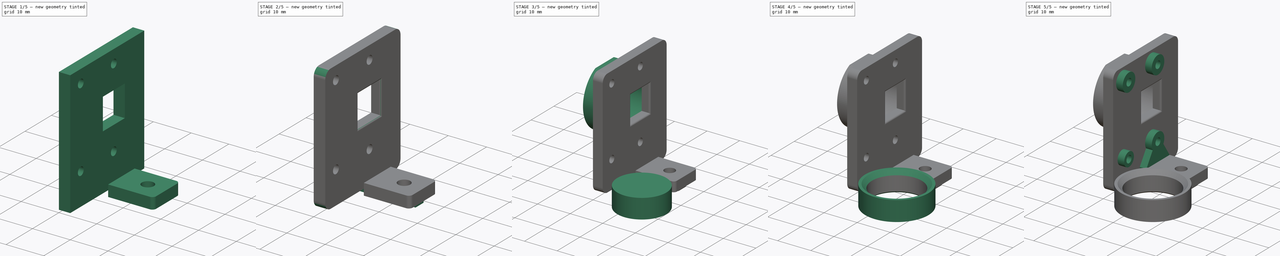
[diagram: build sequence overview — one tinted view per stage of 5, left to right]
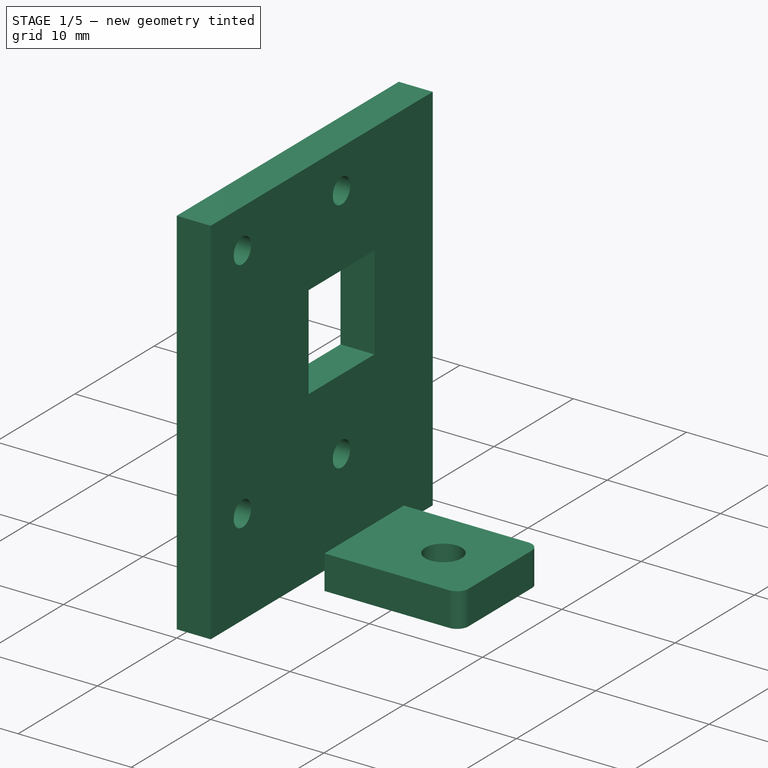
[diagram: stage 1 of 5 — iso view after this stage's code; geometry added in this stage tinted green]
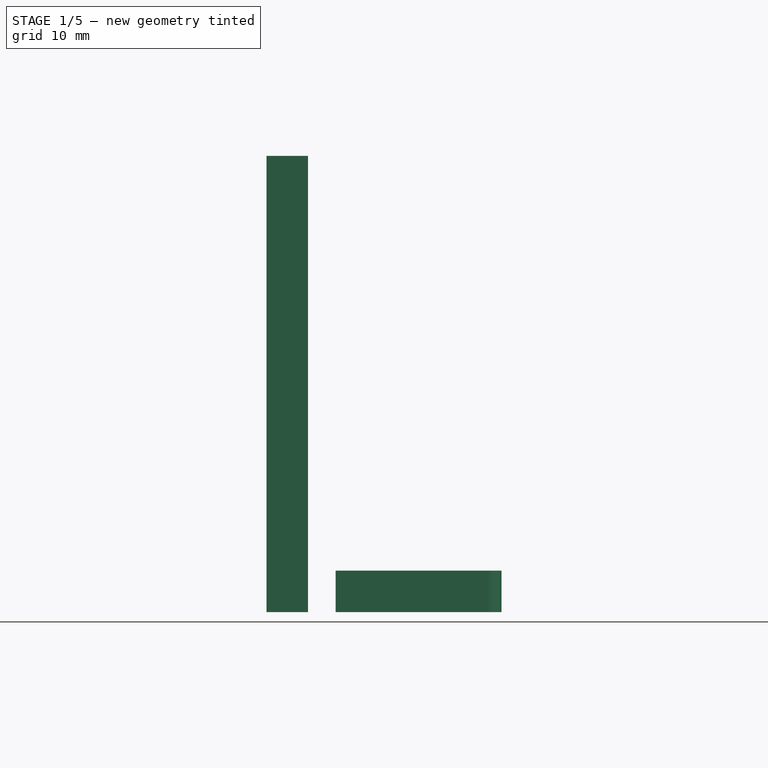
[diagram: stage 1 of 5 — front view after this stage's code; geometry added in this stage tinted green]
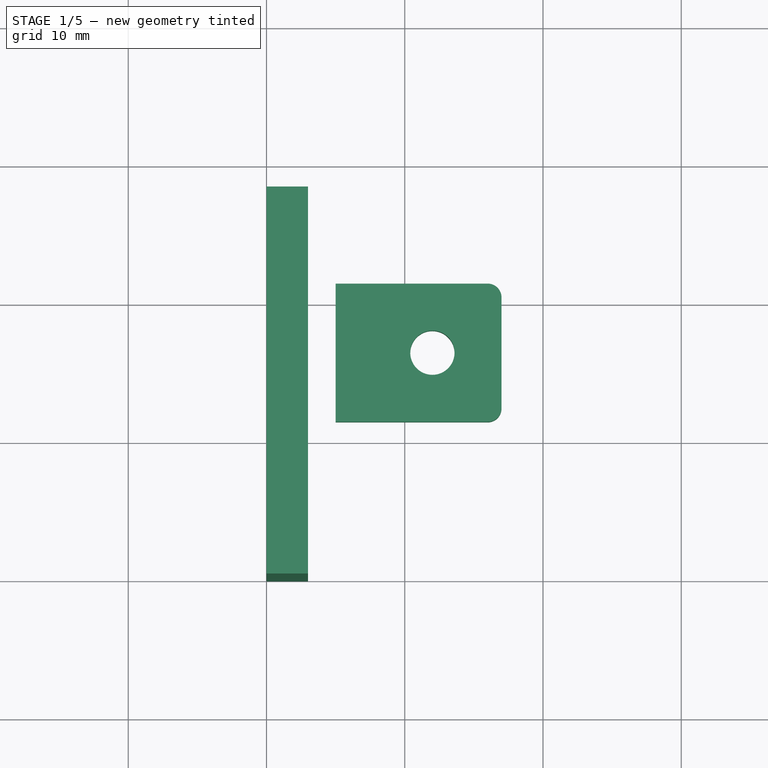
[diagram: stage 1 of 5 — top view after this stage's code; geometry added in this stage tinted green]
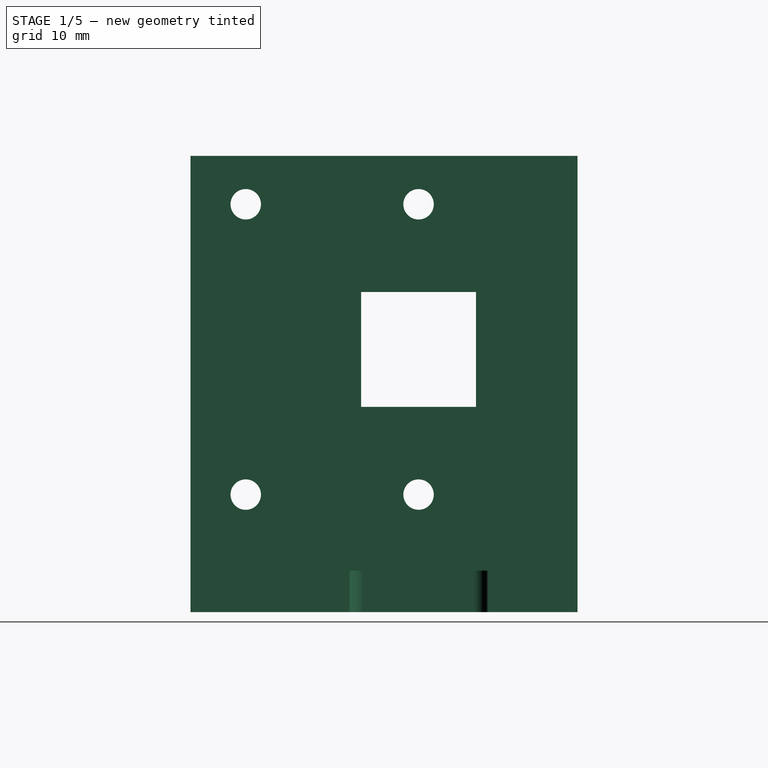
[diagram: stage 1 of 5 — right view after this stage's code; geometry added in this stage tinted green]
FCSTD DOCUMENT  (FreeCAD 0.14R3679 (Git) (Packman))
Label: camera-mount-3
License: CC-BY 3.0
LicenseURL: http://creativecommons.org/licenses/by/3.0/
objects: Sketcher::SketchObject×7, PartDesign::Pad×5, PartDesign::Chamfer×4, PartDesign::Fillet×4, Part::Cylinder×3, PartDesign::Pocket×2, Part::Cut×1, Part::MultiFuse×1, Part::Feature×1
note: 35 computed .brp shape members not serialized (recipe doc carries the construction recipe); baked Part::Feature solids carry a one-line shape summary decoded from their .brp

FEATURE [Sketcher::SketchObject] Sketch
  Placement = pos=(0,0,0) rot=(0.57735,0.57735,0.57735;2.0944rad)
  sketch-geometry (19):
    g0: LineSegment StartX=0 StartY=0 StartZ=0 EndX=28 EndY=0 EndZ=0
    g1: LineSegment StartX=28 StartY=0 StartZ=0 EndX=28 EndY=33 EndZ=0
    g2: LineSegment StartX=28 StartY=33 StartZ=0 EndX=0 EndY=33 EndZ=0
    g3: LineSegment StartX=0 StartY=33 StartZ=0 EndX=0 EndY=0 EndZ=0
    g4: Circle CenterX=16.5 CenterY=29.5 CenterZ=0 NormalX=0 NormalY=0 NormalZ=1 Radius=1.1
    g5: Circle CenterX=4 CenterY=29.5 CenterZ=0 NormalX=0 NormalY=0 NormalZ=1 Radius=1.1
    g6: Circle CenterX=4 CenterY=8.5 CenterZ=0 NormalX=0 NormalY=0 NormalZ=1 Radius=1.1
    g7: Circle CenterX=16.5 CenterY=8.5 CenterZ=0 NormalX=0 NormalY=0 NormalZ=1 Radius=1.1
    g8: LineSegment [constr] StartX=4 StartY=8.5 StartZ=0 EndX=16.5 EndY=8.5 EndZ=0
    g9: LineSegment [constr] StartX=16.5 StartY=8.5 StartZ=0 EndX=16.5 EndY=29.5 EndZ=0
    g10: LineSegment [constr] StartX=16.5 StartY=29.5 StartZ=0 EndX=4 EndY=29.5 EndZ=0
    g11: LineSegment [constr] StartX=4 StartY=29.5 StartZ=0 EndX=4 EndY=8.5 EndZ=0
    g12: LineSegment StartX=12.35 StartY=23.15 StartZ=0 EndX=20.65 EndY=23.15 EndZ=0
    g13: LineSegment StartX=20.65 StartY=23.15 StartZ=0 EndX=20.65 EndY=14.85 EndZ=0
    g14: LineSegment StartX=20.65 StartY=14.85 StartZ=0 EndX=12.35 EndY=14.85 EndZ=0
    g15: LineSegment StartX=12.35 StartY=14.85 StartZ=0 EndX=12.35 EndY=23.15 EndZ=0
    g16: LineSegment [constr] StartX=12.35 StartY=23.15 StartZ=0 EndX=20.65 EndY=14.85 EndZ=0
    g17: LineSegment [constr] StartX=20.65 StartY=23.15 StartZ=0 EndX=12.35 EndY=14.85 EndZ=0
    g18: GeomPoint [constr] X=16.5 Y=19 Z=0
  constraints (49):
    c: Coincident(g0,g1)
    c: Coincident(g1,g2)
    c: Coincident(g2,g3)
    c: Coincident(g3,g0)
    c: Horizontal(g0)
    c: Horizontal(g2)
    c: Vertical(g1)
    c: Vertical(g3)
    c: Coincident(g0,g-1)
    c: DistanceY(g3) = -33
    c: DistanceX(g0) = 28
    c: Equal(g5,g4)
    c: Equal(g4,g6)
    c: Equal(g6,g7)
    c: Radius(g6) = 1.1
    c: Coincident(g8,g9)
    c: Coincident(g9,g10)
    c: Coincident(g10,g11)
    c: Coincident(g11,g8)
    c: Horizontal(g8)
    c: Horizontal(g10)
    c: Vertical(g9)
    c: Vertical(g11)
    c: DistanceY(g11) = -21
    c: DistanceX(g8) = 12.5
    c: Coincident(g6,g8)
    c: Coincident(g7,g8)
    c: Coincident(g5,g10)
    c: Coincident(g9,g4)
    c: Coincident(g12,g13)
    c: Coincident(g13,g14)
    c: Coincident(g14,g15)
    c: Coincident(g15,g12)
    c: Horizontal(g12)
    c: Horizontal(g14)
    c: Vertical(g13)
    c: Vertical(g15)
    c: DistanceY(g13) = -8.3
    c: DistanceX(g12) = 8.3
    c: Symmetric(g13,g14,g9)
    c: DistanceY(g13,g7) = -6.35
    c: DistanceX(g-1,g6) = 4
    c: Coincident(g16,g12)
    c: Coincident(g16,g13)
    c: Coincident(g17,g12)
    c: Coincident(g17,g14)
    c: PointOnObject(g18,g17)
    c: PointOnObject(g18,g16)
    c: DistanceY(g-1,g18) = 19
FEATURE [Sketcher::SketchObject] Sketch001
  Placement = pos=(3,0,0) rot=(0.57735,0.57735,0.57735;2.0944rad)
  sketch-geometry (19):
    g0: Circle CenterX=16.5 CenterY=29.5 CenterZ=0 NormalX=0 NormalY=0 NormalZ=1 Radius=1.1
    g1: Circle CenterX=4 CenterY=29.5 CenterZ=0 NormalX=0 NormalY=0 NormalZ=1 Radius=1.1
    g2: Circle CenterX=4 CenterY=8.5 CenterZ=0 NormalX=0 NormalY=0 NormalZ=1 Radius=1.1
    g3: Circle CenterX=16.5 CenterY=8.5 CenterZ=0 NormalX=0 NormalY=0 NormalZ=1 Radius=1.1
    g4: LineSegment [constr] StartX=4 StartY=8.5 StartZ=0 EndX=16.5 EndY=8.5 EndZ=0
    g5: LineSegment [constr] StartX=16.5 StartY=8.5 StartZ=0 EndX=16.5 EndY=29.5 EndZ=0
    g6: LineSegment [constr] StartX=16.5 StartY=29.5 StartZ=0 EndX=4 EndY=29.5 EndZ=0
    g7: LineSegment [constr] StartX=4 StartY=29.5 StartZ=0 EndX=4 EndY=8.5 EndZ=0
    g8: Circle CenterX=4 CenterY=8.5 CenterZ=0 NormalX=0 NormalY=0 NormalZ=1 Radius=2.1
    g9: ArcOfCircle CenterX=16.5 CenterY=8.5 CenterZ=0 NormalX=0 NormalY=0 NormalZ=1 Radius=2.71418 StartAngle=1.5708 EndAngle=3.70582
    g10: Circle CenterX=4 CenterY=29.5 CenterZ=0 NormalX=0 NormalY=0 NormalZ=1 Radius=2.71418
    g11: Circle CenterX=16.5 CenterY=29.5 CenterZ=0 NormalX=0 NormalY=0 NormalZ=1 Radius=2.71418
    g12: LineSegment StartX=21.5 StartY=3 StartZ=0 EndX=21.5 EndY=0 EndZ=0
    g13: LineSegment StartX=21.5 StartY=0 StartZ=0 EndX=11.5 EndY=0 EndZ=0
    g14: LineSegment StartX=11.5 StartY=0 StartZ=0 EndX=11.5 EndY=3 EndZ=0
    g15: LineSegment StartX=14.2065 StartY=7.04855 StartZ=0 EndX=11.5 EndY=3 EndZ=0
    g16: LineSegment StartX=18.7935 StartY=7.04855 StartZ=0 EndX=21.5 EndY=3 EndZ=0
    g17: ArcOfCircle CenterX=16.5 CenterY=8.5 CenterZ=0 NormalX=0 NormalY=0 NormalZ=1 Radius=2.71418 StartAngle=5.71895 EndAngle=7.85398
    g18: LineSegment [constr] StartX=4 StartY=19 StartZ=0 EndX=16.5 EndY=19 EndZ=0
  constraints (53):
    c: Equal(g1,g0)
    c: Equal(g0,g2)
    c: Equal(g2,g3)
    c: Coincident(g4,g5)
    c: Coincident(g5,g6)
    c: Coincident(g6,g7)
    c: Coincident(g7,g4)
    c: Coincident(g2,g4)
    c: Coincident(g3,g4)
    c: Coincident(g1,g6)
    c: Coincident(g5,g0)
    c: DistanceX(g-1,g2) = 4
    c: Coincident(g8,g2)
    c: Coincident(g10,g1)
    c: Coincident(g11,g0)
    c: Coincident(g9,g3)
    c: Equal(g9,g11)
    c: Equal(g11,g10)
    c: Coincident(g12,g13)
    c: Coincident(g13,g14)
    c: DistanceX(g13,g3) = 5
    c: PointOnObject(g13,g-1)
    c: Tangent(g15,g3)
    c: Tangent(g16,g3)
    c: PointOnObject(g16,g9)
    c: Equal(g16,g15)
    c: PointOnObject(g9,g5)
    c: PointOnObject(g9,g15)
    c: Coincident(g17,g3)
    c: Coincident(g17,g16)
    c: Coincident(g17,g9)
    c: DistanceY(g12) = -3
    c: DistanceX(g13) = -10
    c: Vertical(g12)
    c: Vertical(g14)
    c: Horizontal(g13)
    c: Radius(g2) = 1.1
    c: Equal(g4,g6)
    c: Equal(g7,g5)
    c: Vertical(g7)
    c: Horizontal(g4)
    c: DistanceX(g4) = 12.5
    c: DistanceY(g7) = -21
    c: Coincident(g15,g9)
    c: Coincident(g15,g14)
    c: Coincident(g16,g12)
    c: Radius(g8) = 2.1
    c: Radius(g11) = 2.71418
    c: PointOnObject(g18,g7)
    c: PointOnObject(g18,g5)
    c: Horizontal(g18)
    c: Symmetric(g3,g0,g18)
    c: DistanceY(g-1,g18) = 19
FEATURE [Sketcher::SketchObject] Sketch002
  Placement = pos=(5,0,0) rot=(0.57735,0.57735,0.57735;2.0944rad)
  sketch-geometry (4):
    g0: LineSegment StartX=11.5 StartY=3 StartZ=0 EndX=21.5 EndY=3 EndZ=0
    g1: LineSegment StartX=21.5 StartY=3 StartZ=0 EndX=21.5 EndY=0 EndZ=0
    g2: LineSegment StartX=21.5 StartY=0 StartZ=0 EndX=11.5 EndY=0 EndZ=0
    g3: LineSegment StartX=11.5 StartY=0 StartZ=0 EndX=11.5 EndY=3 EndZ=0
  constraints (12):
    c: Coincident(g0,g1)
    c: Coincident(g1,g2)
    c: Coincident(g2,g3)
    c: Coincident(g3,g0)
    c: PointOnObject(g1,g-1)
    c: DistanceX(g-1,g2) = 11.5
    c: Vertical(g3)
    c: Vertical(g1)
    c: Horizontal(g0)
    c: Horizontal(g2)
    c: DistanceX(g2) = -10
    c: DistanceY(g1) = -3
FEATURE [Sketcher::SketchObject] Sketch004
  Placement = pos=(0,0,0) rot=(0.707107,0.707107,0;3.14159rad)
  sketch-geometry (8):
    g0: LineSegment StartX=15 StartY=9 StartZ=0 EndX=18 EndY=9 EndZ=0
    g1: LineSegment StartX=18 StartY=9 StartZ=0 EndX=18 EndY=0 EndZ=0
    g2: LineSegment StartX=18 StartY=0 StartZ=0 EndX=15 EndY=0 EndZ=0
    g3: LineSegment StartX=15 StartY=0 StartZ=0 EndX=15 EndY=9 EndZ=0
    g4: LineSegment StartX=15 StartY=16 StartZ=0 EndX=18 EndY=16 EndZ=0
    g5: LineSegment StartX=18 StartY=16 StartZ=0 EndX=18 EndY=14 EndZ=0
    g6: LineSegment StartX=18 StartY=14 StartZ=0 EndX=15 EndY=14 EndZ=0
    g7: LineSegment StartX=15 StartY=14 StartZ=0 EndX=15 EndY=16 EndZ=0
  constraints (24):
    c: Coincident(g0,g1)
    c: Coincident(g1,g2)
    c: Coincident(g2,g3)
    c: Coincident(g3,g0)
    c: Coincident(g4,g5)
    c: Coincident(g5,g6)
    c: Coincident(g6,g7)
    c: Coincident(g7,g4)
    c: Equal(g4,g0)
    c: DistanceX(g-1,g2) = 15
    c: DistanceX(g-1,g6) = 15
    c: DistanceY(g5,g0) = -5
    c: PointOnObject(g2,g-1)
    c: Vertical(g3)
    c: Vertical(g1)
    c: Vertical(g5)
    c: Vertical(g7)
    c: Horizontal(g6)
    c: Horizontal(g4)
    c: Horizontal(g0)
    c: Horizontal(g2)
    c: DistanceY(g1) = -9
    c: DistanceY(g5) = -2
    c: DistanceX(g4) = 3
FEATURE [Sketcher::SketchObject] Sketch005
  Placement = pos=(0,0,0) rot=(0.57735,0.57735,-0.57735;4.18879rad)
  sketch-geometry (5):
    g0: Circle CenterX=16.5 CenterY=-19 CenterZ=0 NormalX=0 NormalY=0 NormalZ=1 Radius=7.55
    g1: ArcOfCircle CenterX=16.5 CenterY=-19 CenterZ=0 NormalX=0 NormalY=0 NormalZ=1 Radius=9.44986 StartAngle=2.01074 EndAngle=4.27244
    g2: LineSegment StartX=12.4754 StartY=-10.45 StartZ=0 EndX=20.5246 EndY=-10.45 EndZ=0
    g3: LineSegment StartX=12.4754 StartY=-27.55 StartZ=0 EndX=20.5246 EndY=-27.55 EndZ=0
    g4: ArcOfCircle CenterX=16.5 CenterY=-19 CenterZ=0 NormalX=0 NormalY=0 NormalZ=1 Radius=9.44986 StartAngle=5.15233 EndAngle=7.41404
  constraints (15):
    c: Coincident(g1,g0)
    c: Coincident(g1,g2)
    c: Coincident(g4,g2)
    c: Equal(g3,g2)
    c: Equal(g1,g4)
    c: Coincident(g1,g3)
    c: Coincident(g4,g3)
    c: Coincident(g1,g4)
    c: DistanceY(g3,g2) = 17.1
    c: Radius(g0) = 7.55
    c: DistanceX(g-1,g0) = 16.5
    c: DistanceX(g-1,g1) = 12.4754
    c: Horizontal(g2)
    c: DistanceY(g-1,g0) = -19
    c: Horizontal(g3)
FEATURE [PartDesign::Pad] Pad
  Length = 3
  Length2 = 100
  Placement = pos=(0,0,0) rot=(0.57735,0.57735,0.57735;2.0944rad)
  Sketch = -> Sketch
  Type = 0
FEATURE [PartDesign::Pad] Pad004
  Length = 12
  Length2 = 100
  Placement = pos=(5,0,0) rot=(0.57735,0.57735,0.57735;2.0944rad)
  Sketch = -> Sketch002
  Type = 0
FEATURE [Sketcher::SketchObject] Sketch006
  ExternalGeometry = -> [Pad004]
  Placement = pos=(5,0,3) rot=(0,0,-1;1.5708rad)
  Support = -> Pad004 [Face1]
  sketch-geometry (1):
    g0: Circle CenterX=-16.5 CenterY=7 CenterZ=0 NormalX=0 NormalY=0 NormalZ=1 Radius=1.6
  constraints (3):
    c: Radius(g0) = 1.6
    c: DistanceY(g0,g-4) = 5
    c: DistanceX(g0,g-4) = -5
FEATURE [PartDesign::Pocket] Pocket
  Length = 5
  Placement = pos=(5,0,0) rot=(0.57735,0.57735,0.57735;2.0944rad)
  Sketch = -> Sketch006
  Type = 0
FEATURE [PartDesign::Fillet] Fillet003
  Base = -> Pocket [Edge11,Edge8]
  Placement = pos=(5,0,0) rot=(0.57735,0.57735,0.57735;2.0944rad)
  Radius = 1
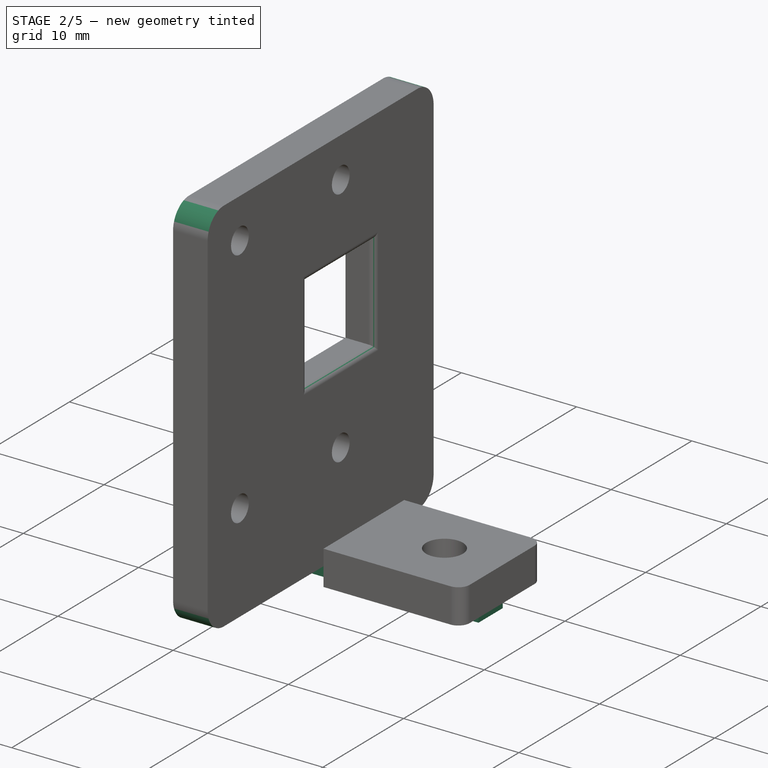
[diagram: stage 2 of 5 — iso view after this stage's code; geometry added in this stage tinted green]
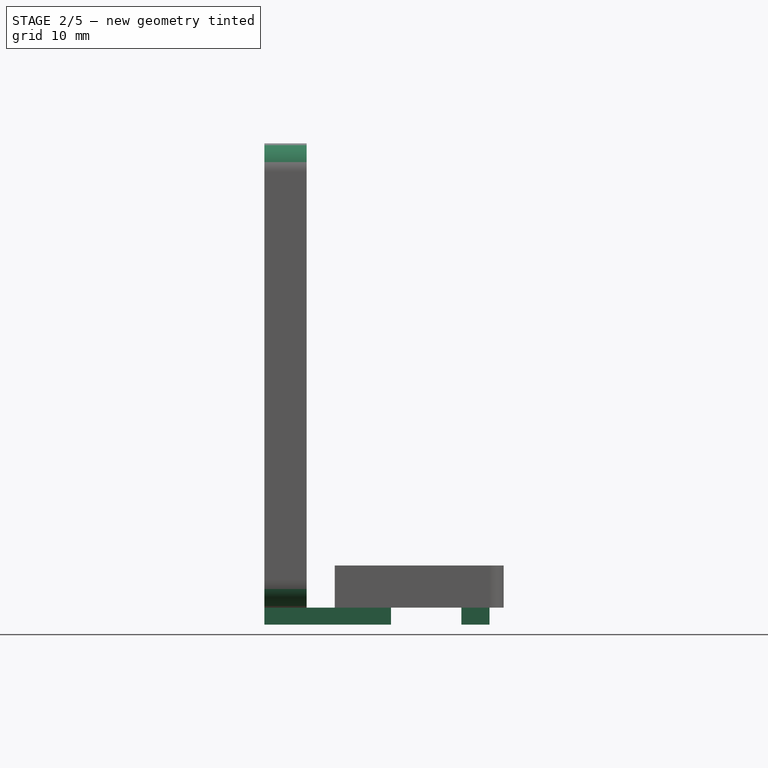
[diagram: stage 2 of 5 — front view after this stage's code; geometry added in this stage tinted green]
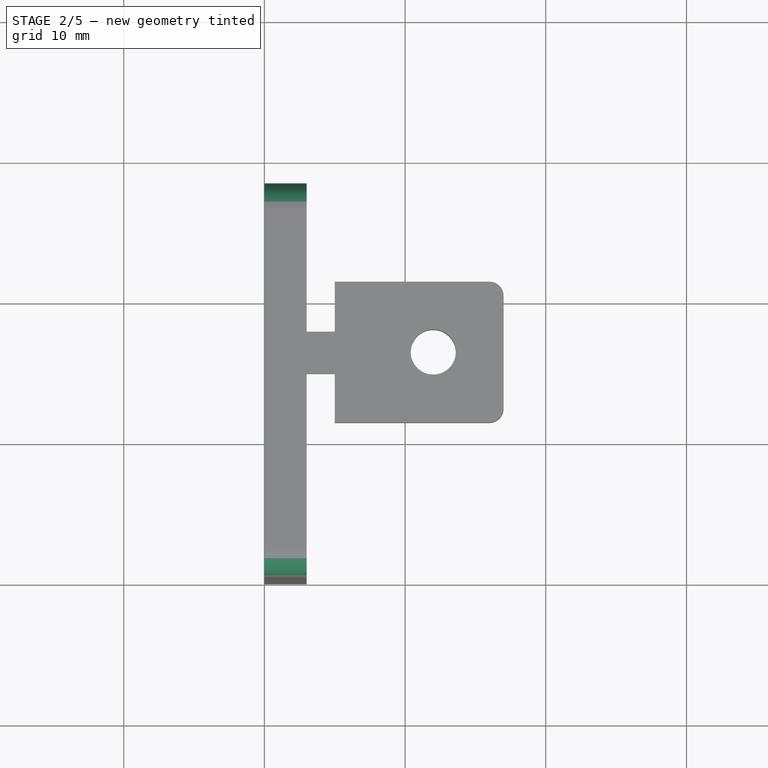
[diagram: stage 2 of 5 — top view after this stage's code; geometry added in this stage tinted green]
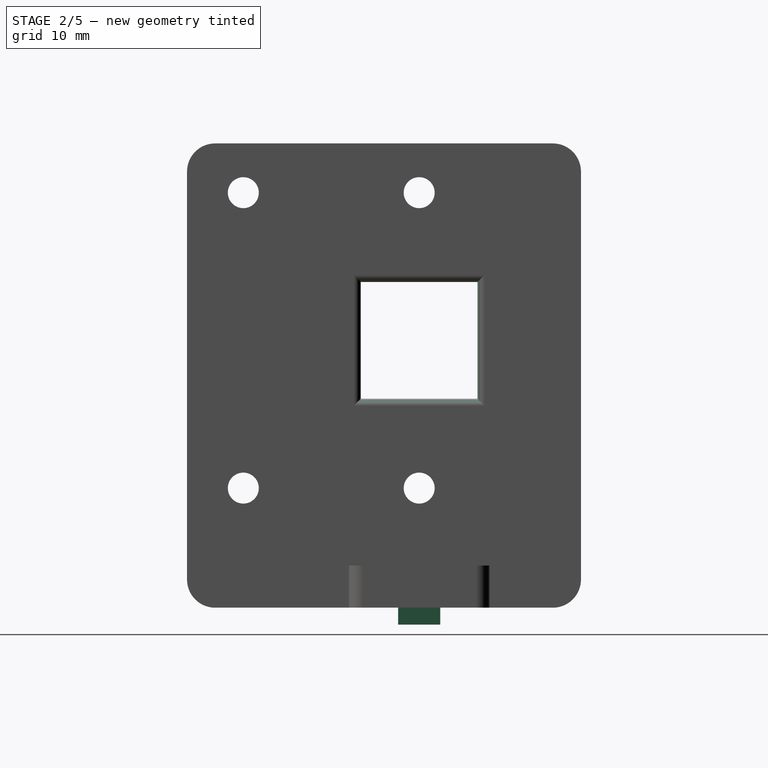
[diagram: stage 2 of 5 — right view after this stage's code; geometry added in this stage tinted green]
FEATURE [PartDesign::Pad] Pad002
  Length = 1.2
  Length2 = 100
  Placement = pos=(0,0,0) rot=(0.707107,0.707107,0;3.14159rad)
  Sketch = -> Sketch004
  Type = 0
FEATURE [Sketcher::SketchObject] Sketch007
  Placement = pos=(0,0,0) rot=(0.57735,0.57735,-0.57735;4.18879rad)
  Support = -> Pad [Face13]
  sketch-geometry (1):
    g0: Circle CenterX=16.5 CenterY=-19 CenterZ=0 NormalX=0 NormalY=0 NormalZ=1 Radius=7.5
  constraints (3):
    c: Radius(g0) = 7.5
    c: DistanceY(g-1,g0) = -19
    c: DistanceX(g-1,g0) = 16.5
FEATURE [PartDesign::Pocket] Pocket001
  Length = 0.5
  Placement = pos=(0,0,0) rot=(0.57735,0.57735,0.57735;2.0944rad)
  Sketch = -> Sketch007
  Type = 0
FEATURE [PartDesign::Fillet] Fillet
  Base = -> Pocket001 [Edge5,Edge8,Edge2,Edge1]
  Placement = pos=(0,0,0) rot=(0.57735,0.57735,0.57735;2.0944rad)
  Radius = 2
FEATURE [PartDesign::Fillet] Fillet002
  Base = -> Fillet [Edge27,Edge26,Edge29,Edge28]
  Placement = pos=(0,0,0) rot=(0.57735,0.57735,0.57735;2.0944rad)
  Radius = 0.5
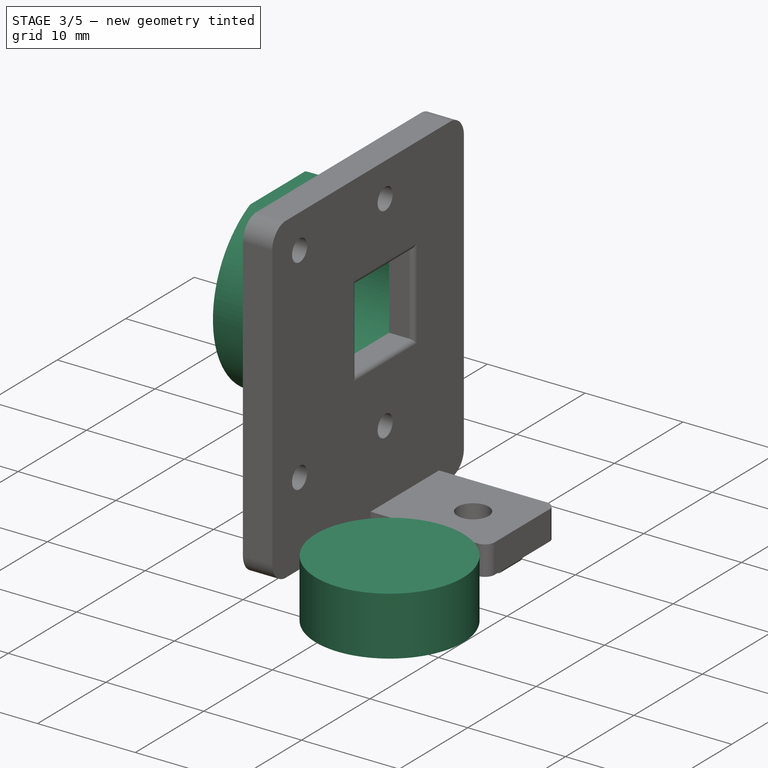
[diagram: stage 3 of 5 — iso view after this stage's code; geometry added in this stage tinted green]
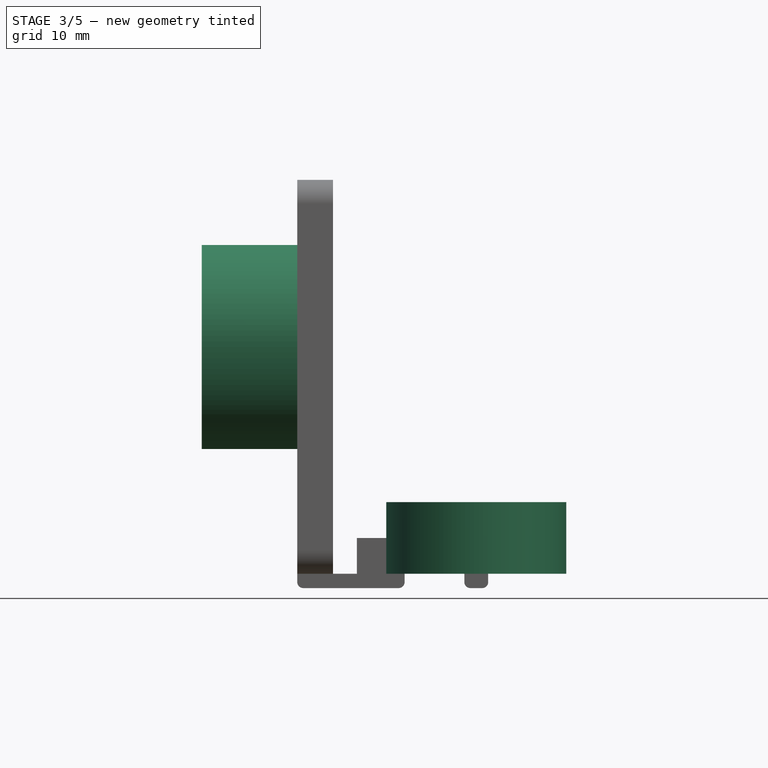
[diagram: stage 3 of 5 — front view after this stage's code; geometry added in this stage tinted green]
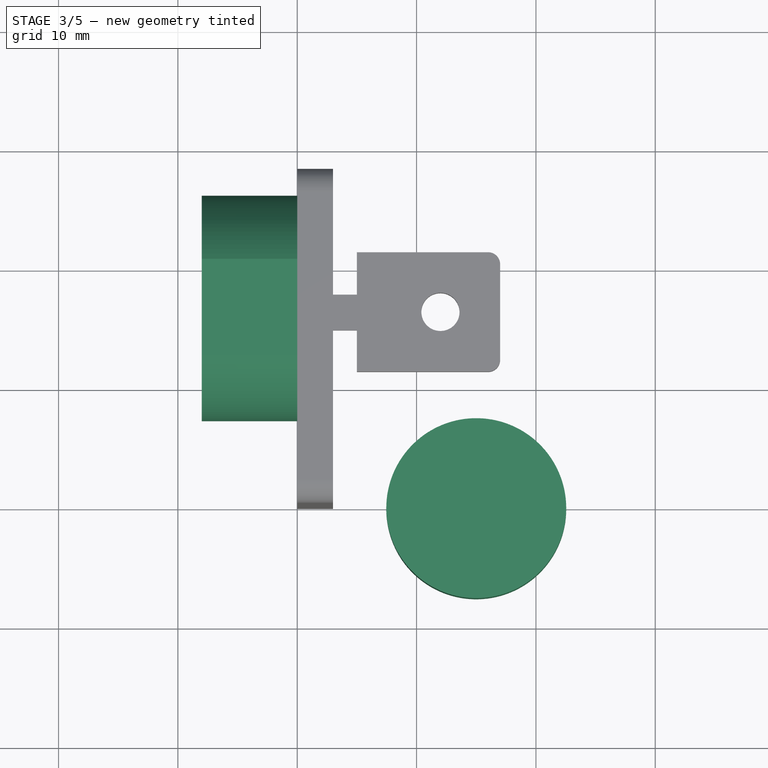
[diagram: stage 3 of 5 — top view after this stage's code; geometry added in this stage tinted green]
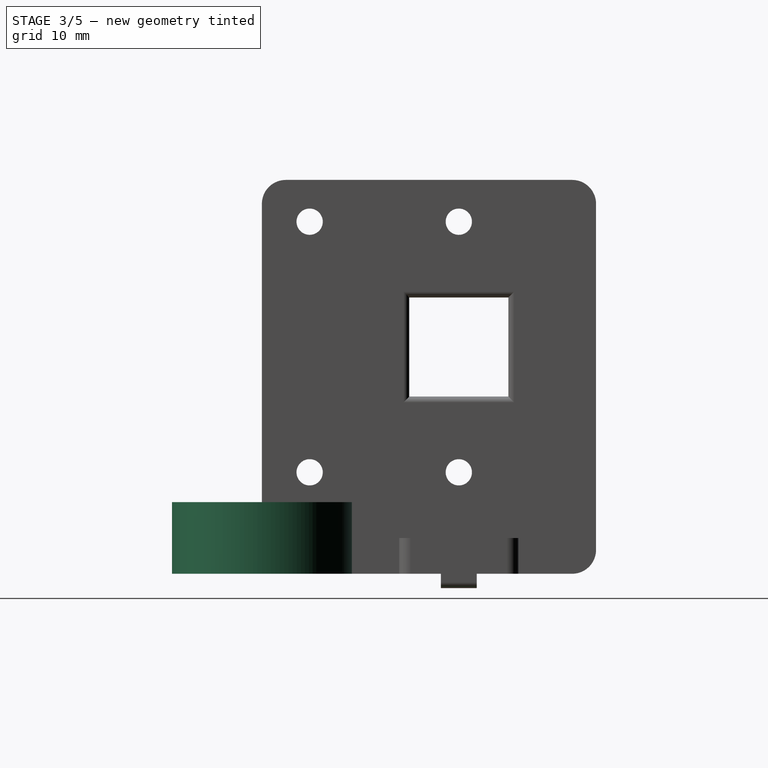
[diagram: stage 3 of 5 — right view after this stage's code; geometry added in this stage tinted green]
FEATURE [PartDesign::Pad] Pad001
  Length = 8
  Length2 = 100
  Placement = pos=(0,0,0) rot=(0.57735,0.57735,-0.57735;4.18879rad)
  Sketch = -> Sketch005
  Type = 0
FEATURE [Part::Cylinder] Cylinder001
  Angle = 360
  Height = 6
  Placement = pos=(15,0,0) rot=(0,0,1;0rad)
  Radius = 7.54
FEATURE [PartDesign::Chamfer] Chamfer003
  Base = -> Pad001 [Edge15]
  Placement = pos=(0,0,0) rot=(0.57735,0.57735,-0.57735;4.18879rad)
  Size = 0.5
FEATURE [PartDesign::Fillet] Fillet001
  Base = -> Pad002 [Edge10,Edge4,Edge22,Edge16]
  Placement = pos=(0,0,0) rot=(0.707107,0.707107,0;3.14159rad)
  Radius = 0.5
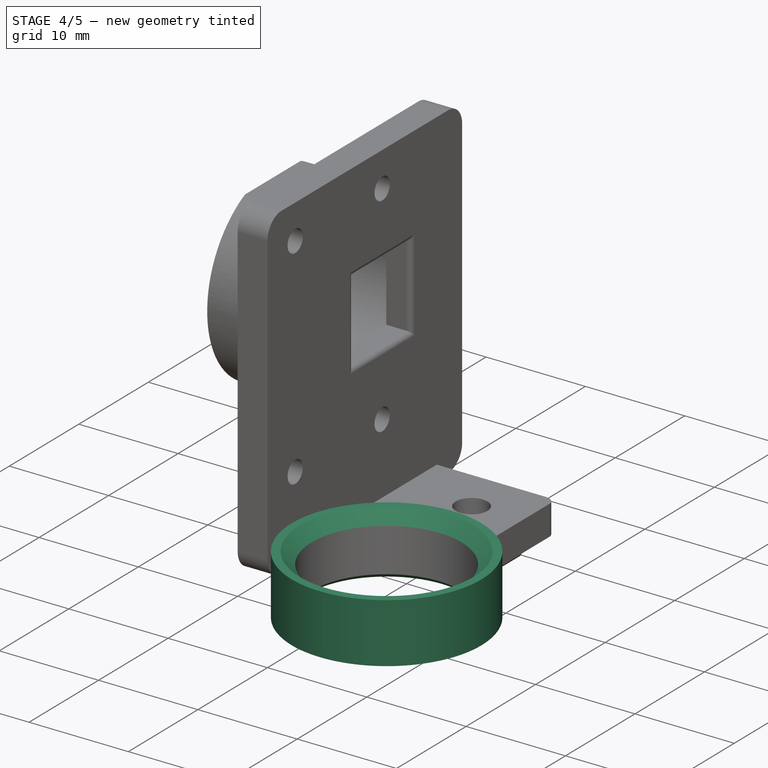
[diagram: stage 4 of 5 — iso view after this stage's code; geometry added in this stage tinted green]
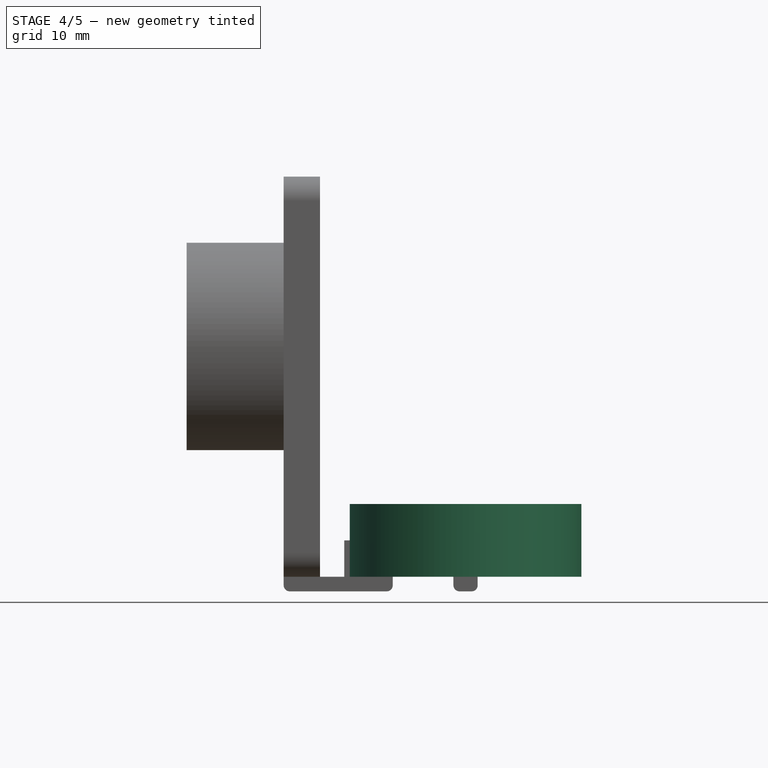
[diagram: stage 4 of 5 — front view after this stage's code; geometry added in this stage tinted green]
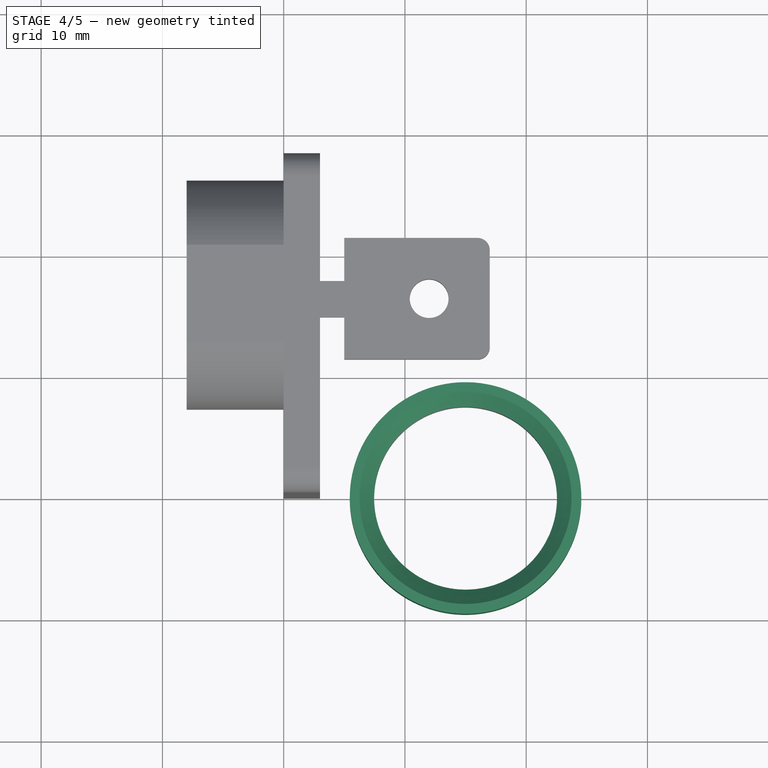
[diagram: stage 4 of 5 — top view after this stage's code; geometry added in this stage tinted green]
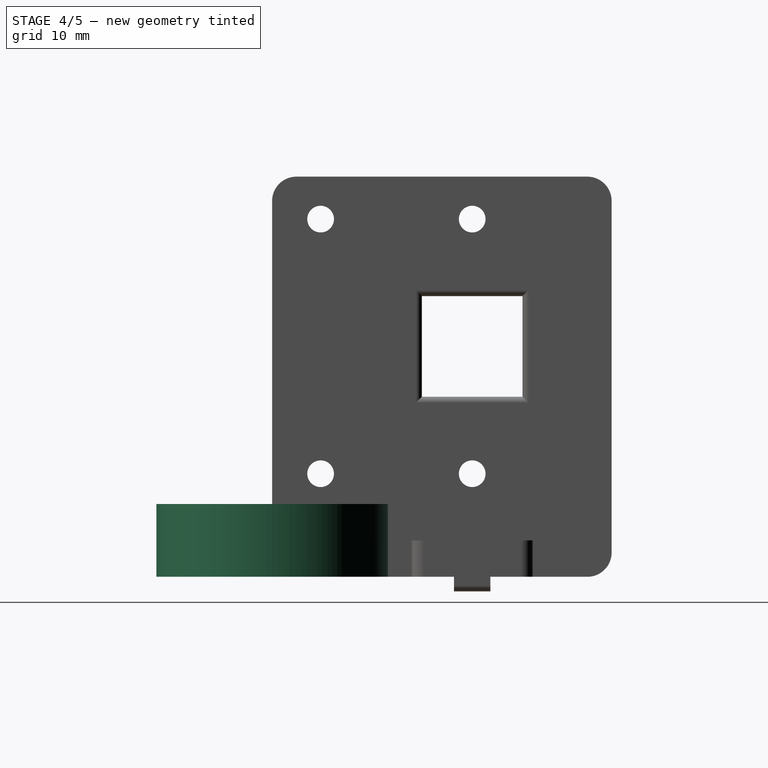
[diagram: stage 4 of 5 — right view after this stage's code; geometry added in this stage tinted green]
FEATURE [Part::Cylinder] Cylinder
  Angle = 360
  Height = 6
  Placement = pos=(15,0,0) rot=(0,0,1;0rad)
  Radius = 9.55
FEATURE [Part::Cut] Cut
  Base = -> Cylinder
  Tool = -> Cylinder001
FEATURE [PartDesign::Chamfer] Chamfer001
  Base = -> Cut [Edge4]
  Size = 1.2
FEATURE [PartDesign::Chamfer] Chamfer002
  Base = -> Chamfer001 [Edge8]
  Size = 0.4
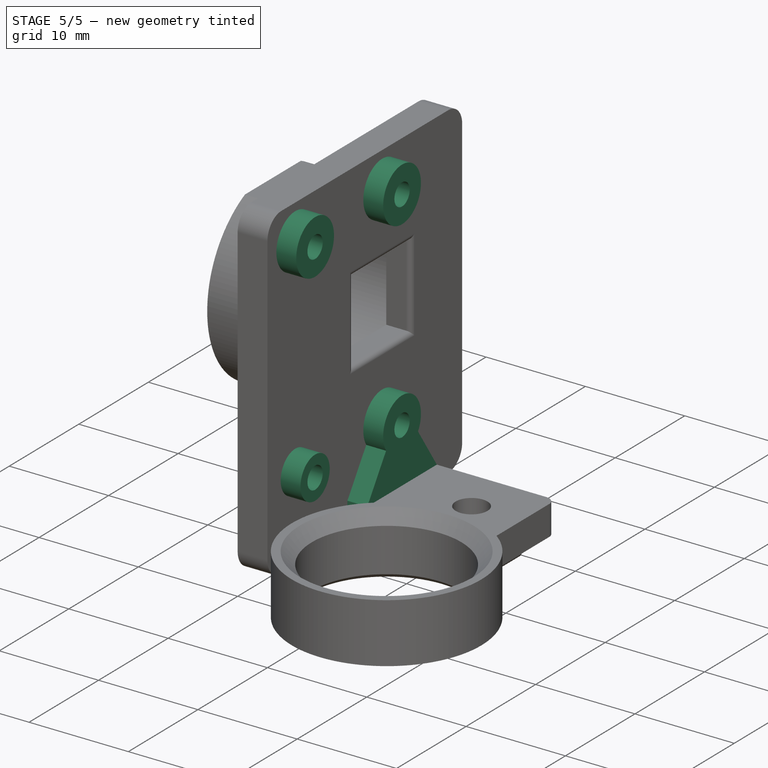
[diagram: stage 5 of 5 — iso view after this stage's code; geometry added in this stage tinted green]
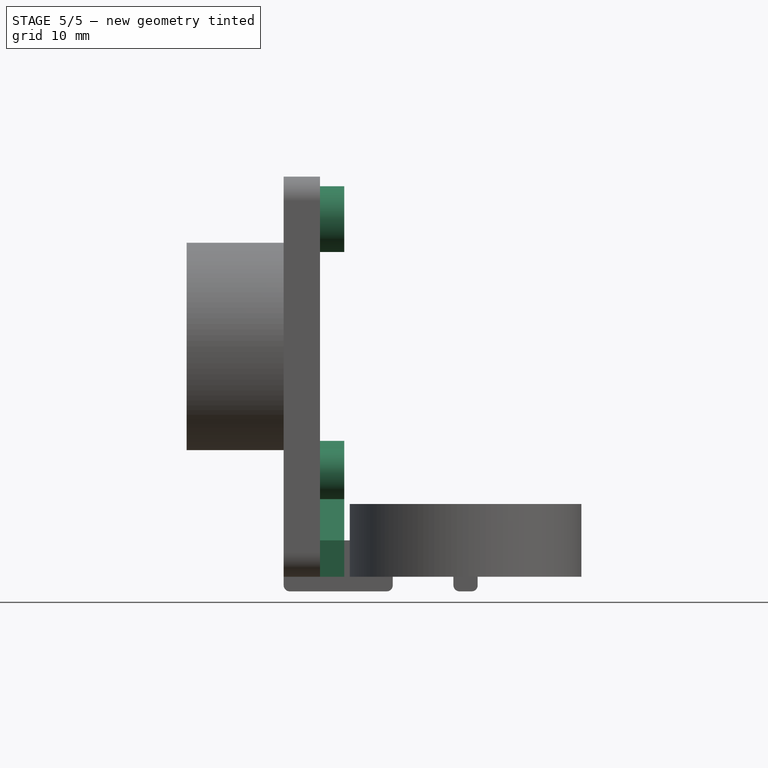
[diagram: stage 5 of 5 — front view after this stage's code; geometry added in this stage tinted green]
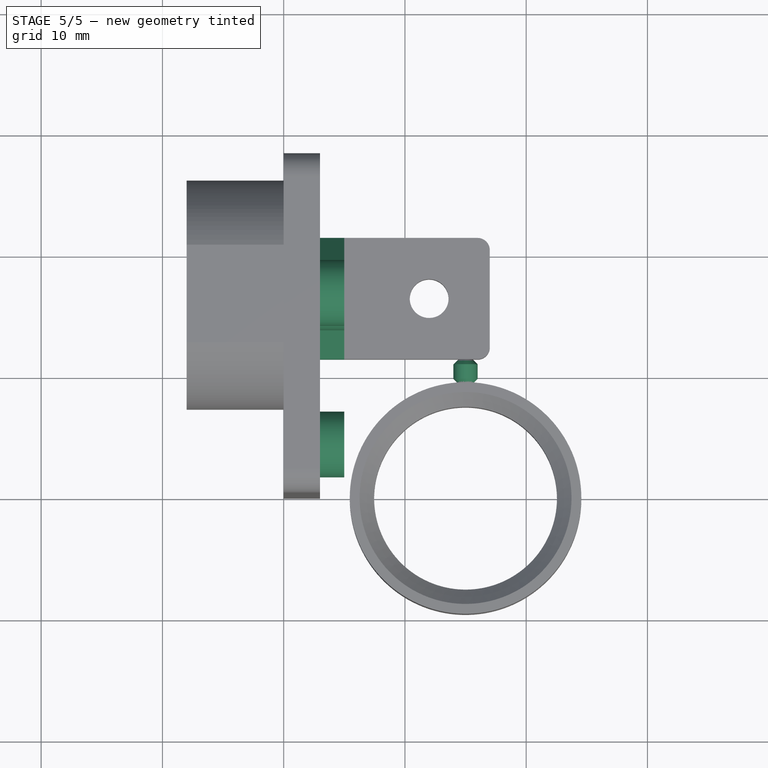
[diagram: stage 5 of 5 — top view after this stage's code; geometry added in this stage tinted green]
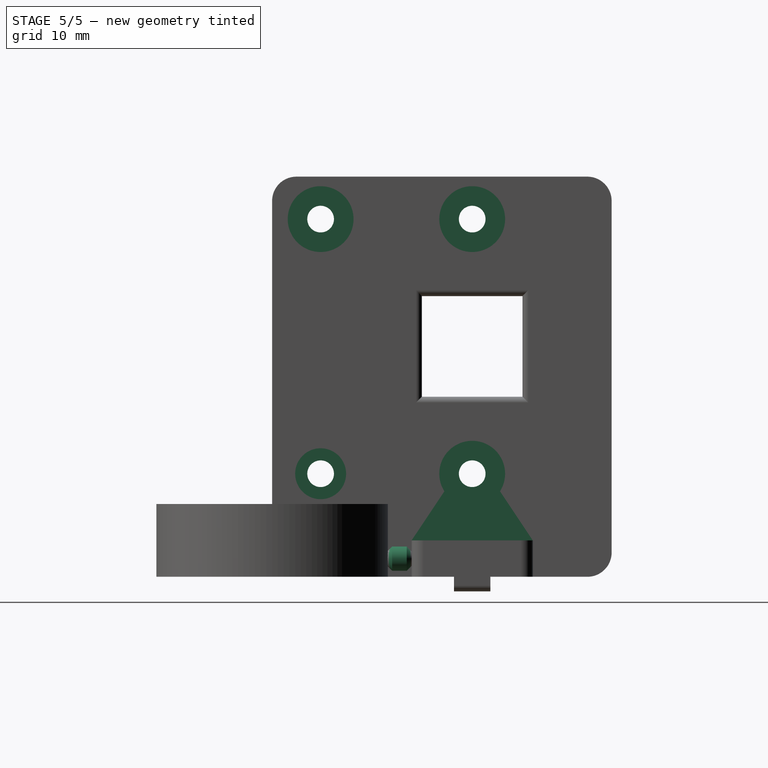
[diagram: stage 5 of 5 — right view after this stage's code; geometry added in this stage tinted green]
FEATURE [PartDesign::Pad] Pad003
  Length = 2
  Length2 = 100
  Placement = pos=(3,0,0) rot=(0.57735,0.57735,0.57735;2.0944rad)
  Sketch = -> Sketch001
  Type = 0
FEATURE [Part::Cylinder] Cylinder002
  Angle = 360
  Height = 2
  Placement = pos=(15,11.5,1.5) rot=(1,0,0;1.5708rad)
  Radius = 1
FEATURE [PartDesign::Chamfer] Chamfer
  Base = -> Cylinder002 [Edge1,Edge3]
  Placement = pos=(15,11.5,1.5) rot=(1,0,0;1.5708rad)
  Size = 0.4
FEATURE [Part::MultiFuse] Fusion
  Shapes = -> [Fillet003,Fillet002,Fillet001,Chamfer003,Chamfer002,Chamfer,Pad003]
FEATURE [Part::Feature] Fusion001
  shape: bbox 32.55 x 37.55 x 34.2 mm, 71 faces (baked)
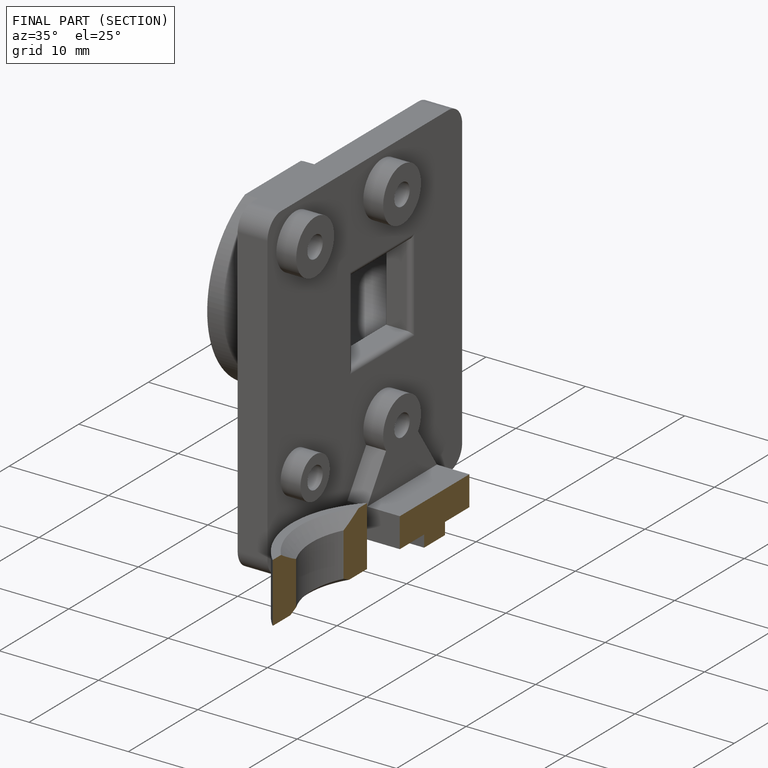
[diagram: finished part — half-section view (interior)]
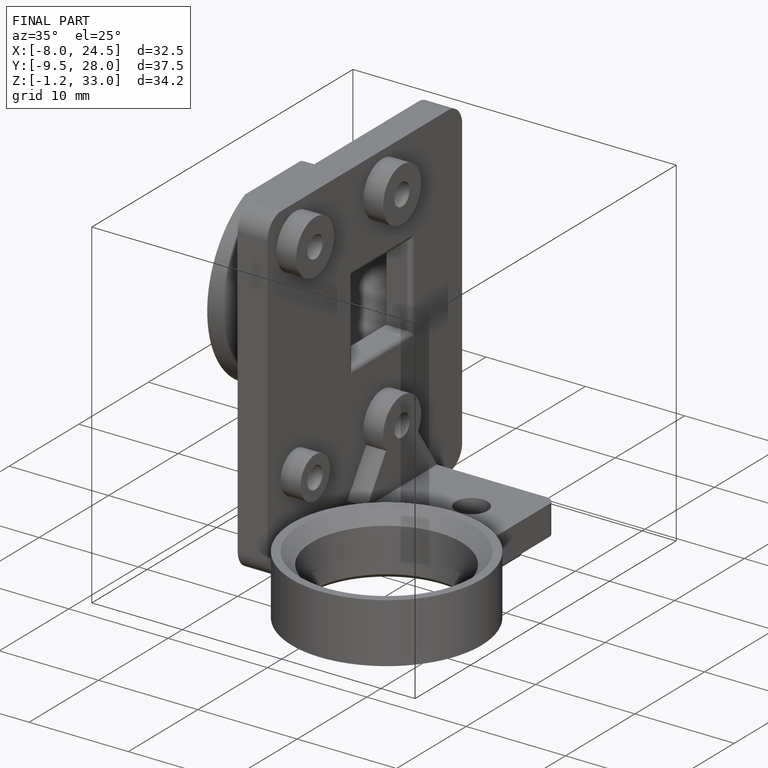
[diagram: finished part — iso view with bounding-box wireframe]
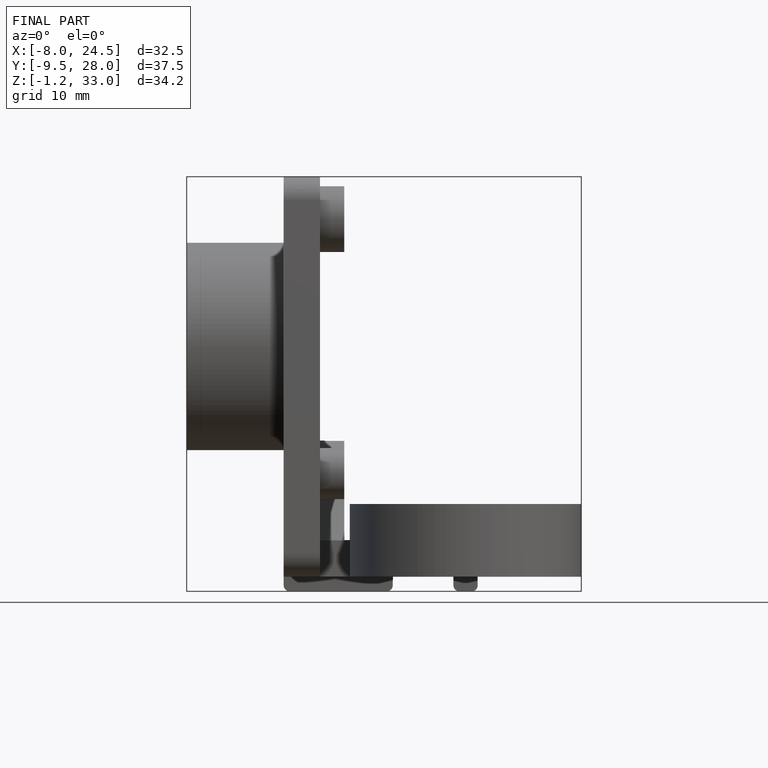
[diagram: finished part — front view with bounding-box wireframe]
